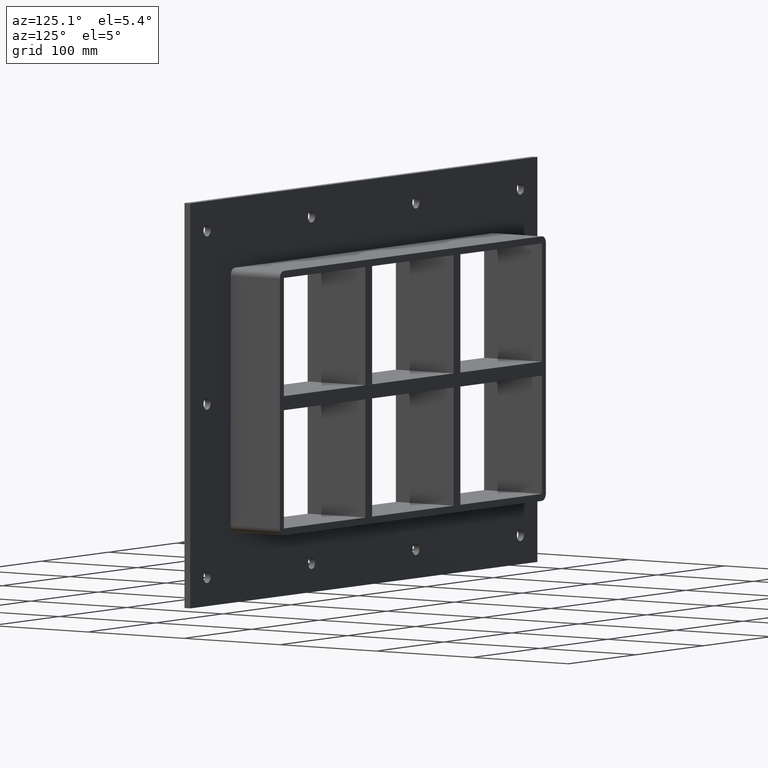
[diagram: clean part render]
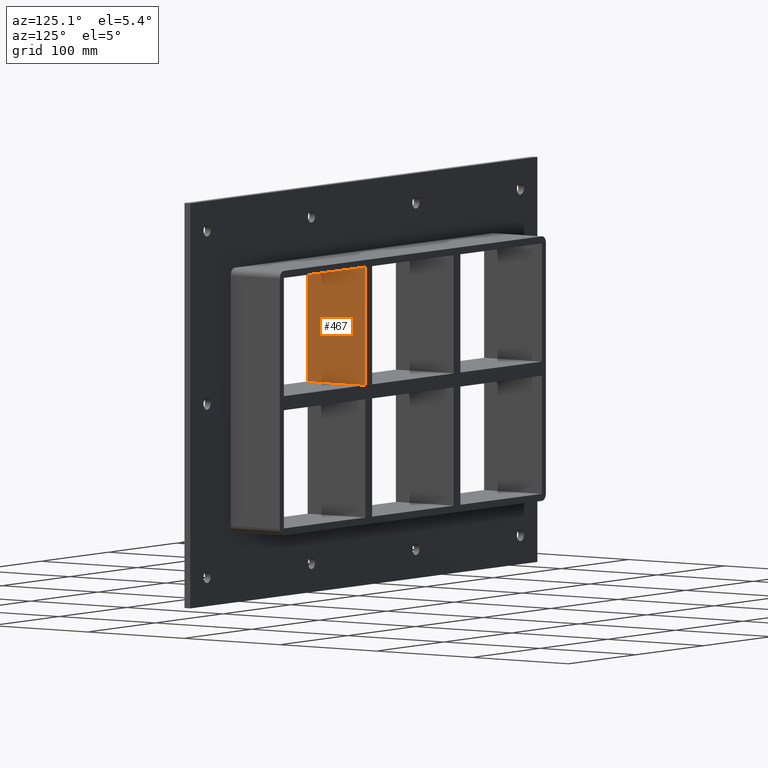
[diagram: same view with one face highlighted and labeled with its STEP entity id]
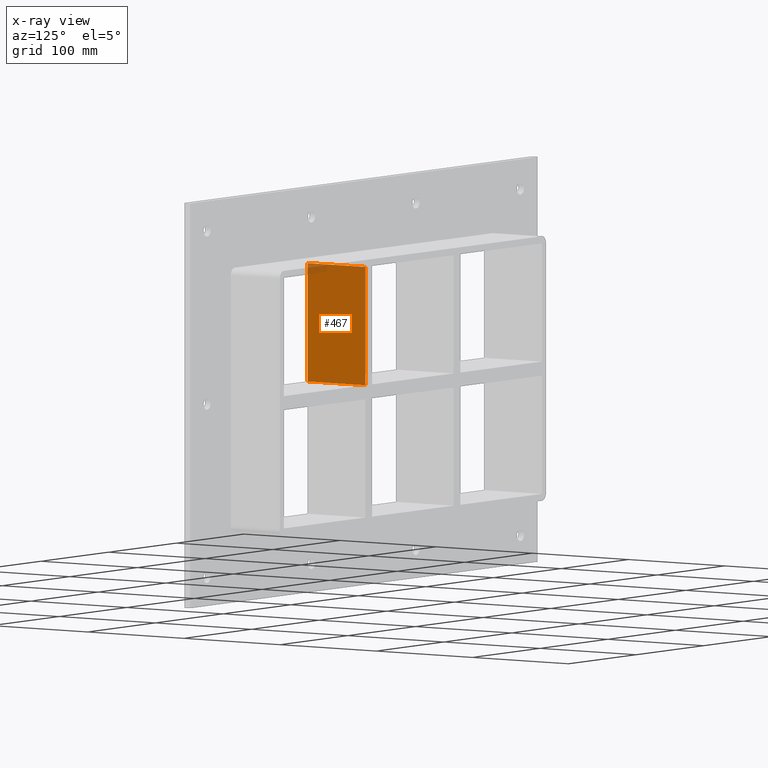
[diagram: x-ray of the same camera — body ghosted, the highlighted face saturated]
A machine part, auxiliary view. The second image highlights one B-rep face of the part: STEP entity #467.
The next image is the same camera in x-ray: the body ghosted, the highlighted face saturated — about 3% of this face is hidden behind the body in this view.
In plain terms, the highlighted planar face has unit normal (1, 0, 0).
Its self-contained STEP definition (entity closure, byte-faithful):
#428=CARTESIAN_POINT('',(70.250000000003638,-3.0,107.00000000000003));
#429=DIRECTION('',(1.0,0.0,0.0));
#430=DIRECTION('',(0.0,0.0,-1.0));
#431=AXIS2_PLACEMENT_3D('',#428,#429,#430);
#432=PLANE('',#431);
#433=CARTESIAN_POINT('',(70.250000000003638,57.0,5.999999999999943));
#434=VERTEX_POINT('',#433);
#435=CARTESIAN_POINT('',(70.250000000003638,-3.0,5.999999999999943));
#436=VERTEX_POINT('',#435);
#437=CARTESIAN_POINT('',(70.250000000003638,57.0,5.999999999999943));
#438=DIRECTION('',(0.0,-1.0,0.0));
#439=VECTOR('',#438,60.0);
#440=LINE('',#437,#439);
#441=EDGE_CURVE('',#434,#436,#440,.T.);
#442=ORIENTED_EDGE('',*,*,#441,.F.);
#443=CARTESIAN_POINT('',(70.250000000003638,57.0,107.00000000000003));
#444=VERTEX_POINT('',#443);
#445=CARTESIAN_POINT('',(70.250000000003638,57.0,107.00000000000003));
#446=DIRECTION('',(0.0,0.0,-1.0));
#447=VECTOR('',#446,101.00000000000009);
#448=LINE('',#445,#447);
#449=EDGE_CURVE('',#444,#434,#448,.T.);
#450=ORIENTED_EDGE('',*,*,#449,.F.);
#451=CARTESIAN_POINT('',(70.250000000003638,-3.0,107.00000000000003));
#452=VERTEX_POINT('',#451);
#453=CARTESIAN_POINT('',(70.250000000003638,-3.0,107.00000000000003));
#454=DIRECTION('',(0.0,1.0,0.0));
#455=VECTOR('',#454,60.000000000000007);
#456=LINE('',#453,#455);
#457=EDGE_CURVE('',#452,#444,#456,.T.);
#458=ORIENTED_EDGE('',*,*,#457,.F.);
#459=CARTESIAN_POINT('',(70.250000000003638,-3.0,107.00000000000003));
#460=DIRECTION('',(0.0,0.0,-1.0));
#461=VECTOR('',#460,101.00000000000009);
#462=LINE('',#459,#461);
#463=EDGE_CURVE('',#452,#436,#462,.T.);
#464=ORIENTED_EDGE('',*,*,#463,.T.);
#465=EDGE_LOOP('',(#442,#450,#458,#464));
#466=FACE_OUTER_BOUND('',#465,.T.);
#467=ADVANCED_FACE('',(#466),#432,.T.);